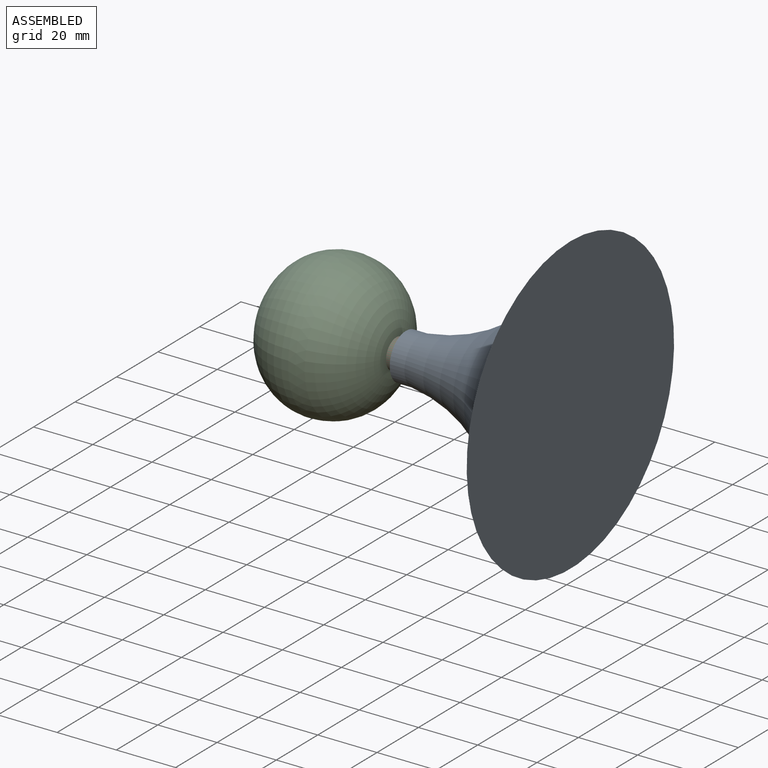
[diagram: assembled view]
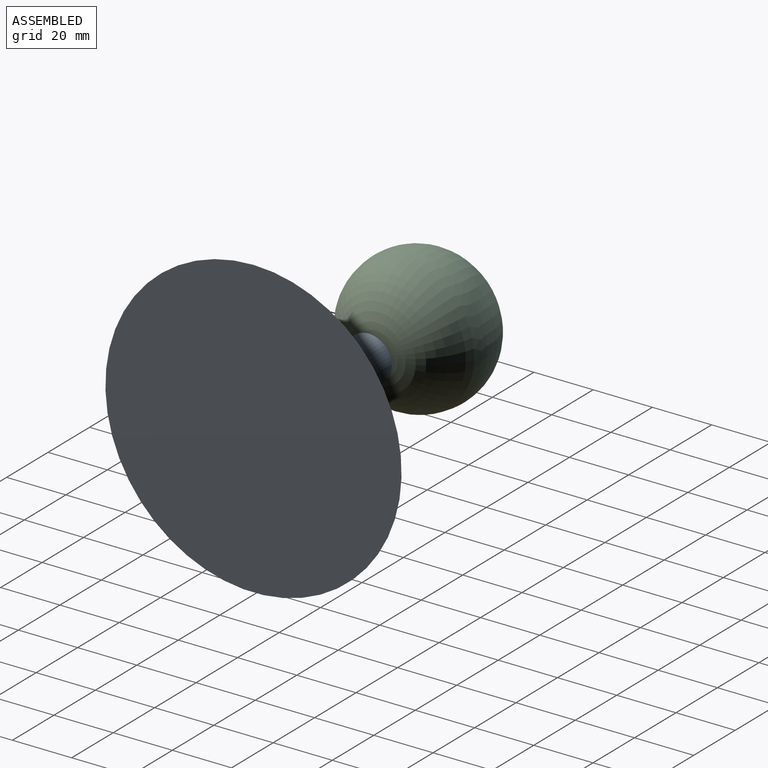
[diagram: assembled view, second angle]
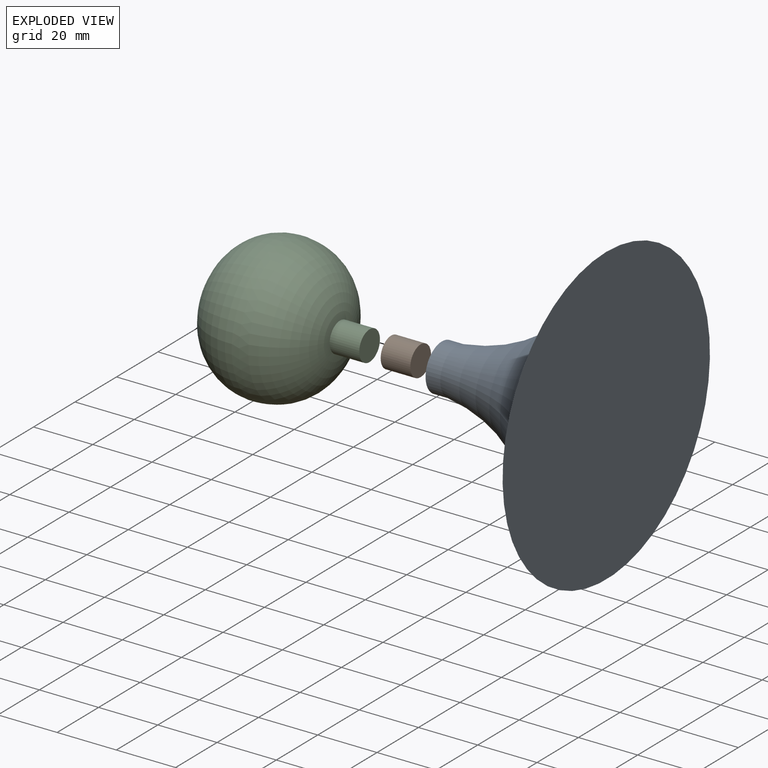
[diagram: exploded view]
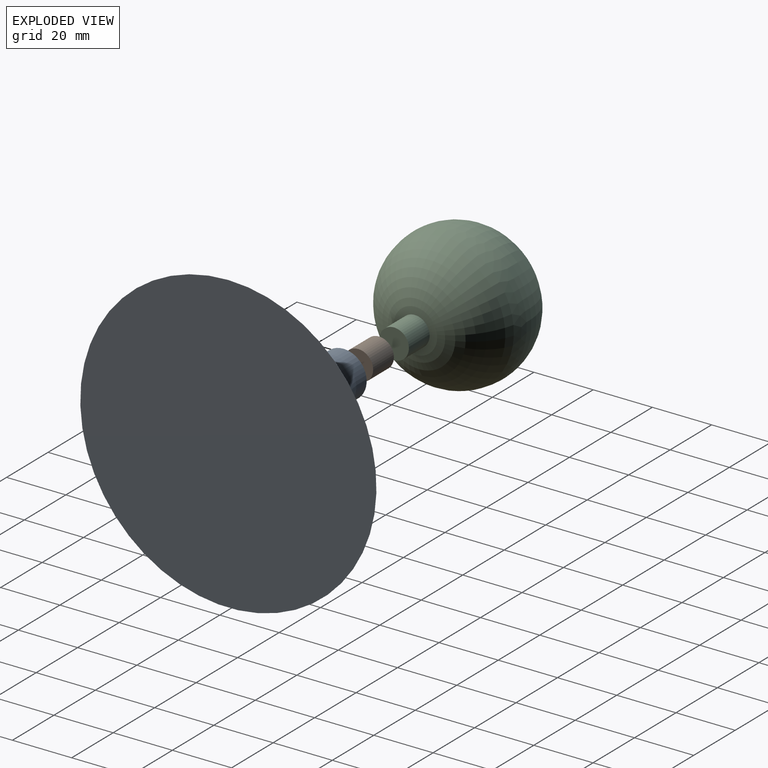
[diagram: exploded view, second angle]
ASSEMBLY  parts=3 mates=2
PART A: 6 faces, bbox 60x145.9x145.9 mm
  f0: plane 11.58x11.58mm, normal (-1,0,0), area 105.4mm2, adj f5
  f1: plane 100x100mm, normal (1,0,0), area 7854mm2, adj f2
  f2: torus R=67.4mm, axis (-1,0,0), area 10463.1mm2, adj f1,f3
  f3: cylinder r=7.79mm len=15.58mm, axis (-1,0,0), area 244.8mm2, adj f2,f4
  f4: plane 15.58x15.58mm, normal (-1,0,0), area 85.3mm2, adj f3,f5
  f5: cylinder r=5.79mm len=11.58mm, axis (-1,0,0), area 181.9mm2, adj f0,f4
PART B: 5 faces, bbox 10x10x10 mm
  f0: cylinder r=5mm len=10mm, axis (-1,0,0), area 314.2mm2, adj f1,f2
  f1: plane 10x10mm, normal (-1,0,0), area 17.7mm2, adj f0,f3
  f2: plane 10x10mm, normal (1,0,0), area 78.5mm2, adj f0
  f3: cylinder r=4.4mm len=8.8mm, axis (-1,0,0), area 235.2mm2, adj f1,f4
  f4: plane 8.8x8.8mm, normal (-1,0,0), area 60.8mm2, adj f3
PART C: 4 faces, bbox 47.9x47.3x51.1 mm
  f0: torus R=3.5mm, axis (0,0,1), area 2859.4mm2, adj f1,f3
  f1: torus R=3.86mm, axis (0,0,1), area 3860.7mm2, adj f0
  f2: plane 10x10mm, normal (0,0,1), area 78.5mm2, adj f3
  f3: cylinder r=5mm len=10mm, axis (0,0,1), area 314.2mm2, adj f0,f2
PLACE A t=(-56.31,-52.03,15.17)mm
PLACE B t=(-106.86,-52.03,15.17)mm
PLACE C rot(axis=(0,1,0),90deg) t=(-132.69,-52.03,15.17)mm
MATE slider C.f3 <-> B.f0  axis (1,0,0) through (-105.06,-52.03,15.17)mm
MATE revolute A.f2 <-> B.f0  axis (-1,0,0) through (-106.86,-52.03,15.17)mm
